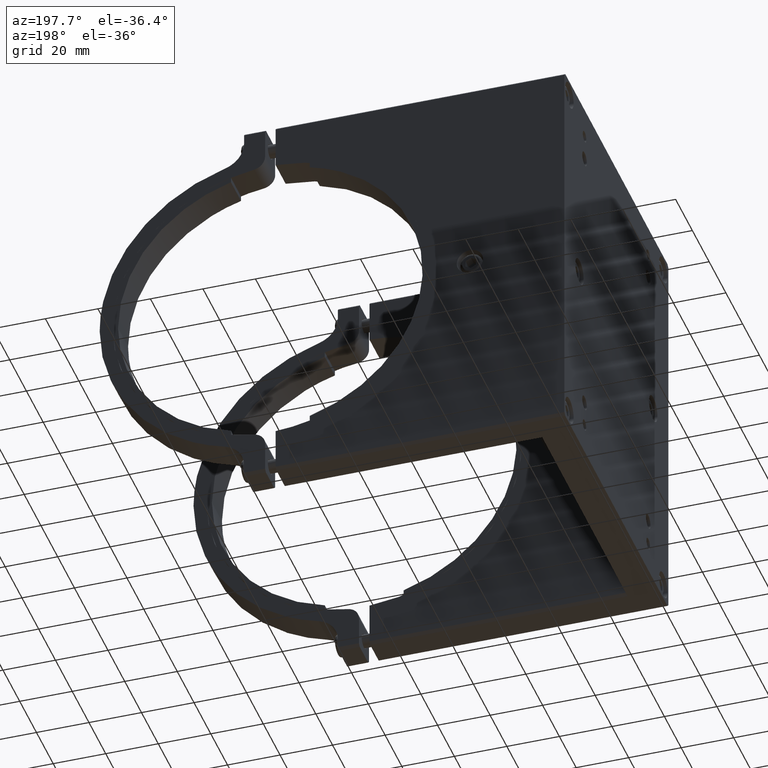
[diagram: clean part render]
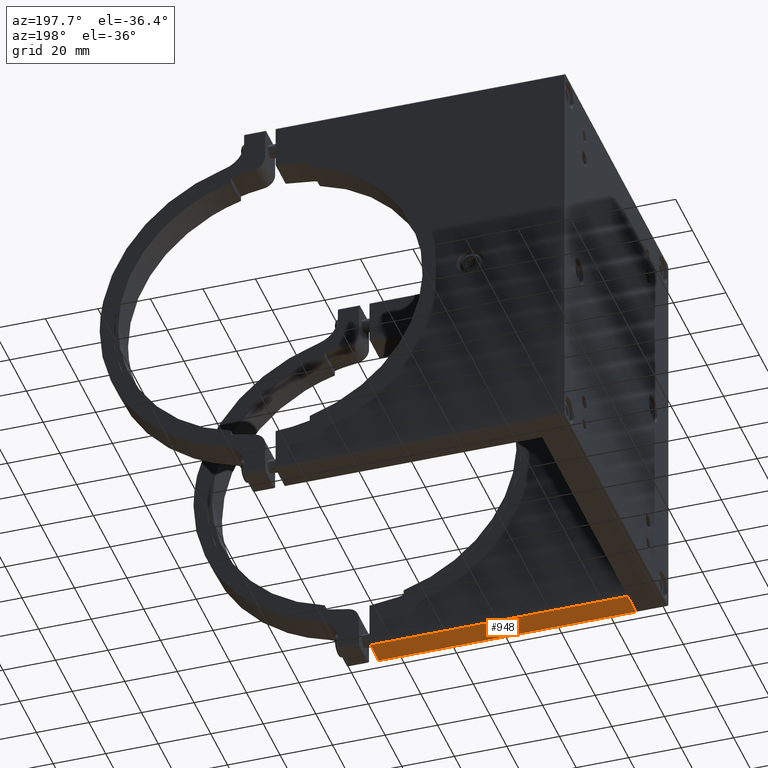
[diagram: same view with one face highlighted and labeled with its STEP entity id]
A machine part, auxiliary view. The second image highlights one B-rep face of the part: STEP entity #948.
In plain terms, the highlighted face is a freeform B-spline surface patch.
Its self-contained STEP definition (entity closure, byte-faithful):
#130 = CARTESIAN_POINT ( 'NONE',  ( 98.00000000000000000, 11.00000000000000000, 77.00000000000000000 ) ) ;
#207 = EDGE_CURVE ( 'NONE', #4914, #6156, #3662, .T. ) ;
#394 = ORIENTED_EDGE ( 'NONE', *, *, #7191, .T. ) ;
#948 = ADVANCED_FACE ( 'NONE', ( #3015 ), #956, .T. ) ;
#956 = B_SPLINE_SURFACE_WITH_KNOTS ( 'NONE', 1, 1, ( 
 ( #5195, #3049 ),
 ( #6322, #130 ) ),
 .UNSPECIFIED., .F., .F., .F.,
 ( 2, 2 ),
 ( 2, 2 ),
 ( 0.0000000000000000000, 1.000000000000000000 ),
 ( 0.0000000000000000000, 1.000000000000000000 ),
 .UNSPECIFIED. ) ;
#1105 = VERTEX_POINT ( 'NONE', #7023 ) ;
#1127 = VERTEX_POINT ( 'NONE', #4909 ) ;
#1364 = CARTESIAN_POINT ( 'NONE',  ( 98.00000000000000000, 0.9999999986666670004, 77.00000000000000000 ) ) ;
#2139 = CARTESIAN_POINT ( 'NONE',  ( 0.0000000000000000000, 11.00000000133331923, 77.00000000000000000 ) ) ;
#2439 = EDGE_CURVE ( 'NONE', #4914, #1105, #5914, .T. ) ;
#2957 = ORIENTED_EDGE ( 'NONE', *, *, #4727, .T. ) ;
#3015 = FACE_OUTER_BOUND ( 'NONE', #7226, .T. ) ;
#3049 = CARTESIAN_POINT ( 'NONE',  ( 0.0000000000000000000, 11.00000000000000000, 77.00000000000000000 ) ) ;
#3438 = B_SPLINE_CURVE_WITH_KNOTS ( 'NONE', 1,
 ( #3870, #6662 ),
 .UNSPECIFIED., .F., .F.,
 ( 2, 2 ),
 ( 0.0000000000000000000, 1.000000000000000000 ),
 .UNSPECIFIED. ) ;
#3662 = B_SPLINE_CURVE_WITH_KNOTS ( 'NONE', 1,
 ( #6431, #1364 ),
 .UNSPECIFIED., .F., .F.,
 ( 2, 2 ),
 ( 0.0000000000000000000, 1.000000000000000000 ),
 .UNSPECIFIED. ) ;
#3870 = CARTESIAN_POINT ( 'NONE',  ( 98.00000000000000000, 11.00000000133331923, 77.00000000000000000 ) ) ;
#4341 = CARTESIAN_POINT ( 'NONE',  ( 0.0000000000000000000, 0.9999999986666670004, 77.00000000000000000 ) ) ;
#4364 = ORIENTED_EDGE ( 'NONE', *, *, #207, .T. ) ;
#4727 = EDGE_CURVE ( 'NONE', #1127, #1105, #3438, .T. ) ;
#4838 = B_SPLINE_CURVE_WITH_KNOTS ( 'NONE', 1,
 ( #4943, #6480 ),
 .UNSPECIFIED., .F., .F.,
 ( 2, 2 ),
 ( 0.0000000000000000000, 1.000000000000000000 ),
 .UNSPECIFIED. ) ;
#4909 = CARTESIAN_POINT ( 'NONE',  ( 98.00000000000000000, 11.00000000133331923, 77.00000000000000000 ) ) ;
#4914 = VERTEX_POINT ( 'NONE', #4341 ) ;
#4943 = CARTESIAN_POINT ( 'NONE',  ( 98.00000000000000000, 0.9999999986666670004, 77.00000000000000000 ) ) ;
#5195 = CARTESIAN_POINT ( 'NONE',  ( 0.0000000000000000000, 1.000000000000000000, 77.00000000000000000 ) ) ;
#5914 = B_SPLINE_CURVE_WITH_KNOTS ( 'NONE', 1,
 ( #6098, #2139 ),
 .UNSPECIFIED., .F., .F.,
 ( 2, 2 ),
 ( 0.0000000000000000000, 1.000000000000000000 ),
 .UNSPECIFIED. ) ;
#6098 = CARTESIAN_POINT ( 'NONE',  ( 0.0000000000000000000, 0.9999999986666670004, 77.00000000000000000 ) ) ;
#6156 = VERTEX_POINT ( 'NONE', #6646 ) ;
#6322 = CARTESIAN_POINT ( 'NONE',  ( 98.00000000000000000, 1.000000000000000000, 77.00000000000000000 ) ) ;
#6431 = CARTESIAN_POINT ( 'NONE',  ( 0.0000000000000000000, 0.9999999986666670004, 77.00000000000000000 ) ) ;
#6480 = CARTESIAN_POINT ( 'NONE',  ( 98.00000000000000000, 11.00000000133331923, 77.00000000000000000 ) ) ;
#6646 = CARTESIAN_POINT ( 'NONE',  ( 98.00000000000000000, 0.9999999986666670004, 77.00000000000000000 ) ) ;
#6662 = CARTESIAN_POINT ( 'NONE',  ( 0.0000000000000000000, 11.00000000133331923, 77.00000000000000000 ) ) ;
#6811 = ORIENTED_EDGE ( 'NONE', *, *, #2439, .F. ) ;
#7023 = CARTESIAN_POINT ( 'NONE',  ( 0.0000000000000000000, 11.00000000133331923, 77.00000000000000000 ) ) ;
#7191 = EDGE_CURVE ( 'NONE', #6156, #1127, #4838, .T. ) ;
#7226 = EDGE_LOOP ( 'NONE', ( #394, #2957, #6811, #4364 ) ) ;